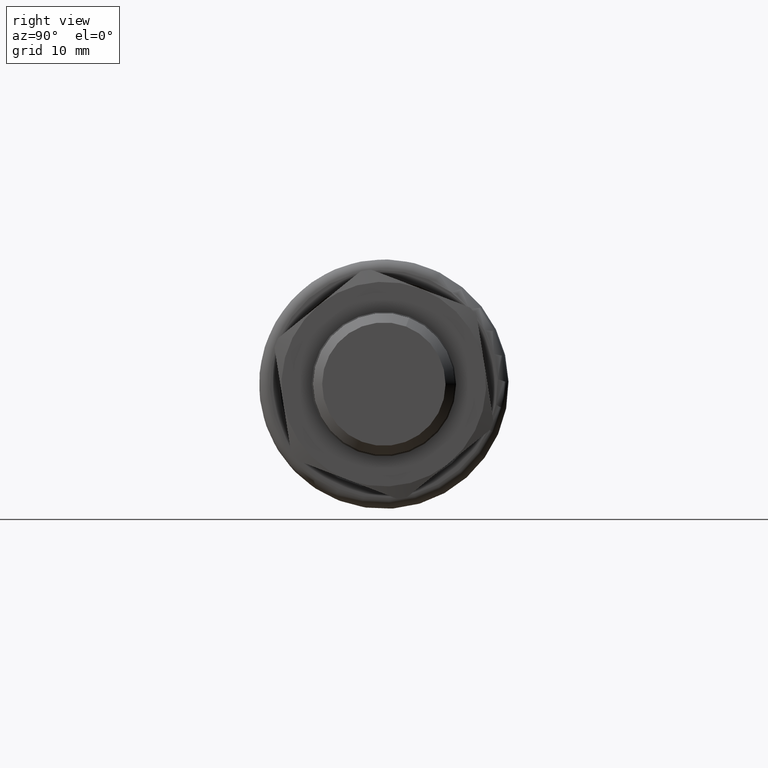
[diagram: clean part render]
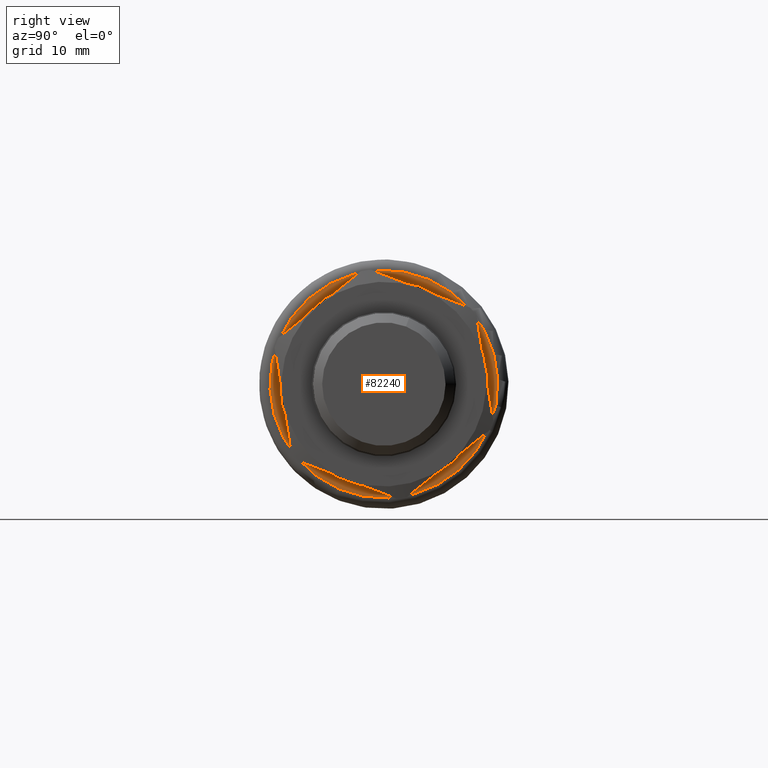
[diagram: same view with one face highlighted and labeled with its STEP entity id]
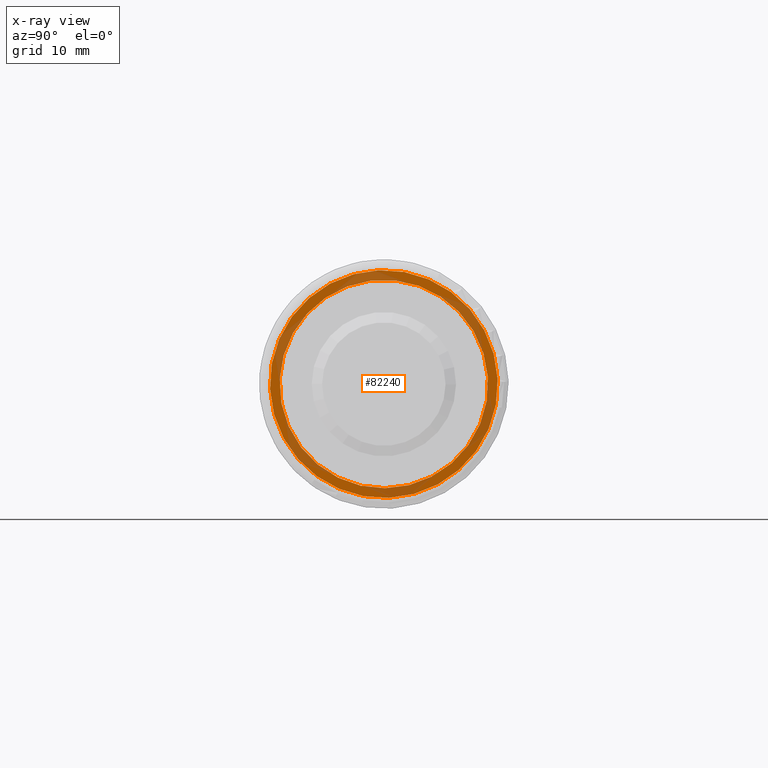
[diagram: x-ray of the same camera — body ghosted, the highlighted face saturated]
A machine part, right view. The second image highlights one B-rep face of the part: STEP entity #82240.
The next image is the same camera in x-ray: the body ghosted, the highlighted face saturated — about 37% of this face is hidden behind the body in this view.
In plain terms, the highlighted planar face has unit normal (1, 0, 0).
Its self-contained STEP definition (entity closure, byte-faithful):
#82189=CARTESIAN_POINT('',(28.75,8.549856405417833,-6.223389787465963));
#82190=VERTEX_POINT('',#82189);
#82191=CARTESIAN_POINT('',(28.75,0.0,0.0));
#82192=DIRECTION('',(-1.0,0.0,0.0));
#82193=DIRECTION('',(0.0,-0.80849705961398,0.588500216308838));
#82194=AXIS2_PLACEMENT_3D('',#82191,#82192,#82193);
#82195=CIRCLE('',#82194,10.574999999999999);
#82196=EDGE_CURVE('',#82190,#82190,#82195,.T.);
#82221=CARTESIAN_POINT('',(28.75,8.590281258398534,-6.252814798281403));
#82222=DIRECTION('',(1.0,0.0,0.0));
#82223=DIRECTION('',(0.0,-0.588500216308838,-0.80849705961398));
#82224=AXIS2_PLACEMENT_3D('',#82221,#82222,#82223);
#82225=PLANE('',#82224);
#82226=ORIENTED_EDGE('',*,*,#82196,.F.);
#82227=EDGE_LOOP('',(#82226));
#82228=FACE_OUTER_BOUND('',#82227,.T.);
#82229=CARTESIAN_POINT('',(28.75,7.822209051765254,-5.693739592788009));
#82230=VERTEX_POINT('',#82229);
#82231=CARTESIAN_POINT('',(28.75,0.0,0.0));
#82232=DIRECTION('',(1.0,0.0,0.0));
#82233=DIRECTION('',(0.0,0.80849705961398,-0.588500216308838));
#82234=AXIS2_PLACEMENT_3D('',#82231,#82232,#82233);
#82235=CIRCLE('',#82234,9.675000000000001);
#82236=EDGE_CURVE('',#82230,#82230,#82235,.T.);
#82237=ORIENTED_EDGE('',*,*,#82236,.F.);
#82238=EDGE_LOOP('',(#82237));
#82239=FACE_BOUND('',#82238,.T.);
#82240=ADVANCED_FACE('',(#82228,#82239),#82225,.T.);